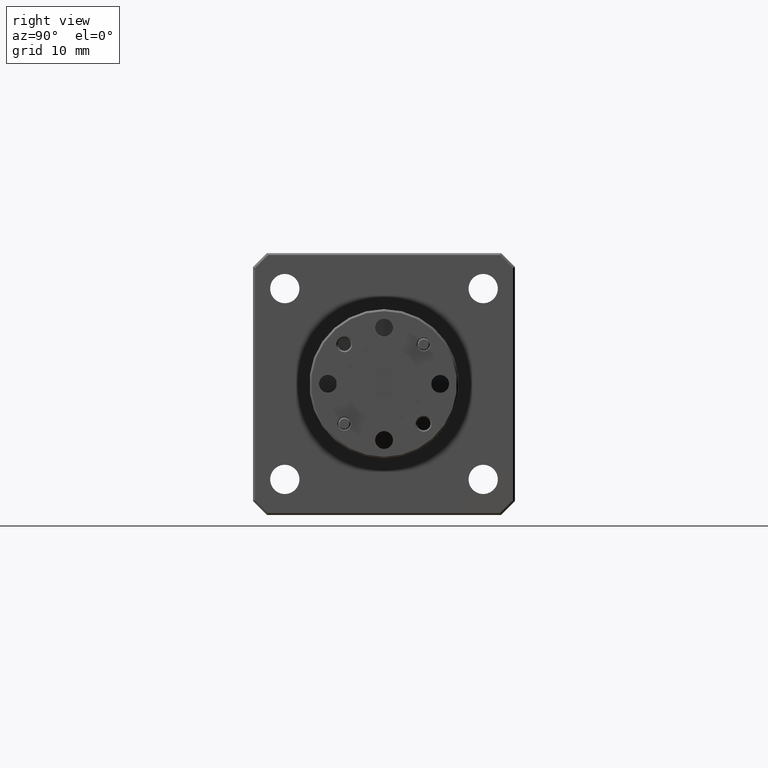
[diagram: clean part render]
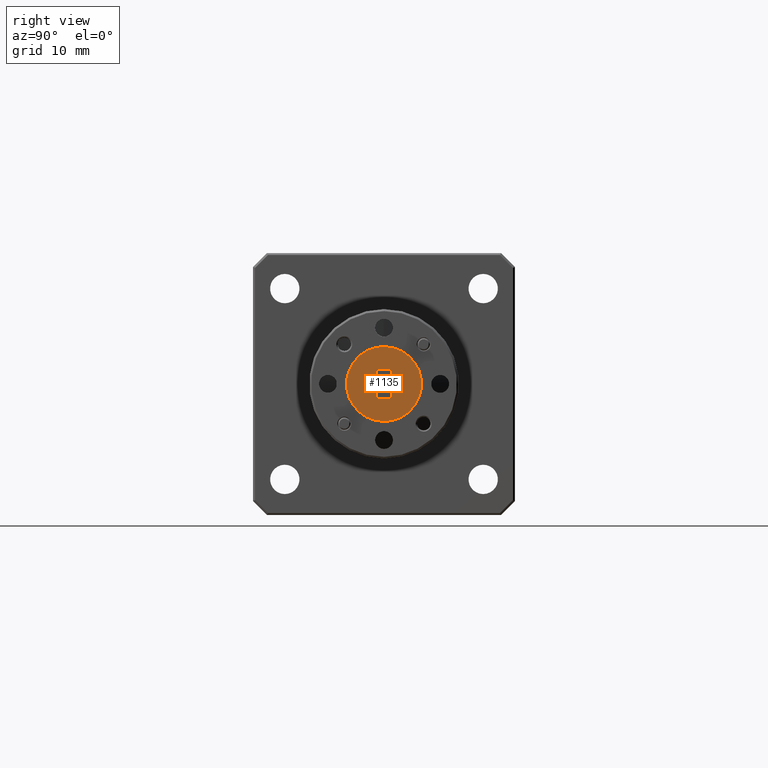
[diagram: same view with one face highlighted and labeled with its STEP entity id]
A machine part, right view. The second image highlights one B-rep face of the part: STEP entity #1135.
In plain terms, the highlighted planar face has unit normal (-1, 0, -0).
Its self-contained STEP definition (entity closure, byte-faithful):
#114 = DIRECTION ( 'NONE',  ( 0.0000000000000000000, -1.730478036527193700E-016, 1.000000000000000000 ) ) ;
#186 = VECTOR ( 'NONE', #880, 39.37007874015748100 ) ;
#239 = ORIENTED_EDGE ( 'NONE', *, *, #2838, .F. ) ;
#249 = FACE_BOUND ( 'NONE', #312, .T. ) ;
#295 = EDGE_CURVE ( 'NONE', #2774, #1028, #2462, .T. ) ;
#312 = EDGE_LOOP ( 'NONE', ( #815, #730, #705, #239 ) ) ;
#405 = CIRCLE ( 'NONE', #1616, 0.1875000000000003900 ) ;
#542 = DIRECTION ( 'NONE',  ( -1.000000000000000000, -0.0000000000000000000, -0.0000000000000000000 ) ) ;
#604 = CARTESIAN_POINT ( 'NONE',  ( 3.000000000000000400, 0.03699999999999999800, -0.07400000000000003800 ) ) ;
#691 = CARTESIAN_POINT ( 'NONE',  ( 3.000000000000000400, 0.0000000000000000000, 0.1875000000000003900 ) ) ;
#705 = ORIENTED_EDGE ( 'NONE', *, *, #1759, .F. ) ;
#730 = ORIENTED_EDGE ( 'NONE', *, *, #2949, .F. ) ;
#731 = AXIS2_PLACEMENT_3D ( 'NONE', #2712, #542, #1402 ) ;
#732 = CIRCLE ( 'NONE', #731, 0.1875000000000003900 ) ;
#815 = ORIENTED_EDGE ( 'NONE', *, *, #295, .F. ) ;
#880 = DIRECTION ( 'NONE',  ( 0.0000000000000000000, 1.000000000000000000, 0.0000000000000000000 ) ) ;
#939 = CARTESIAN_POINT ( 'NONE',  ( 3.000000000000000400, -0.03700000000000002600, 0.07399999999999995500 ) ) ;
#974 = DIRECTION ( 'NONE',  ( -0.0000000000000000000, 0.0000000000000000000, 1.000000000000000000 ) ) ;
#1028 = VERTEX_POINT ( 'NONE', #3131 ) ;
#1118 = CARTESIAN_POINT ( 'NONE',  ( 3.000000000000000400, -0.03700000000000000500, -0.07400000000000003800 ) ) ;
#1135 = ADVANCED_FACE ( 'NONE', ( #2901, #249 ), #1743, .F. ) ;
#1176 = CARTESIAN_POINT ( 'NONE',  ( 3.000000000000000400, 0.0000000000000000000, 0.0000000000000000000 ) ) ;
#1204 = CARTESIAN_POINT ( 'NONE',  ( 3.000000000000000400, 2.296212748401292000E-017, -0.1875000000000003900 ) ) ;
#1249 = LINE ( 'NONE', #939, #1366 ) ;
#1366 = VECTOR ( 'NONE', #1429, 39.37007874015748100 ) ;
#1402 = DIRECTION ( 'NONE',  ( 0.0000000000000000000, 0.0000000000000000000, 1.000000000000000000 ) ) ;
#1429 = DIRECTION ( 'NONE',  ( -0.0000000000000000000, -1.000000000000000000, -0.0000000000000000000 ) ) ;
#1560 = ORIENTED_EDGE ( 'NONE', *, *, #1966, .F. ) ;
#1616 = AXIS2_PLACEMENT_3D ( 'NONE', #1176, #3136, #2915 ) ;
#1700 = DIRECTION ( 'NONE',  ( -1.000000000000000000, 0.0000000000000000000, -0.0000000000000000000 ) ) ;
#1706 = VERTEX_POINT ( 'NONE', #3068 ) ;
#1743 = PLANE ( 'NONE',  #2351 ) ;
#1759 = EDGE_CURVE ( 'NONE', #2233, #1706, #3195, .T. ) ;
#1915 = DIRECTION ( 'NONE',  ( -0.0000000000000000000, 1.153652024351462600E-016, -1.000000000000000000 ) ) ;
#1966 = EDGE_CURVE ( 'NONE', #2025, #2277, #405, .T. ) ;
#2025 = VERTEX_POINT ( 'NONE', #691 ) ;
#2074 = LINE ( 'NONE', #2402, #186 ) ;
#2233 = VERTEX_POINT ( 'NONE', #2926 ) ;
#2277 = VERTEX_POINT ( 'NONE', #1204 ) ;
#2351 = AXIS2_PLACEMENT_3D ( 'NONE', #2691, #1700, #974 ) ;
#2386 = VECTOR ( 'NONE', #114, 39.37007874015748100 ) ;
#2402 = CARTESIAN_POINT ( 'NONE',  ( 3.000000000000000400, -0.03700000000000000500, -0.07400000000000003800 ) ) ;
#2462 = LINE ( 'NONE', #604, #2386 ) ;
#2515 = VECTOR ( 'NONE', #1915, 39.37007874015748100 ) ;
#2691 = CARTESIAN_POINT ( 'NONE',  ( 3.000000000000000400, 0.1875000000000003900, 0.0000000000000000000 ) ) ;
#2712 = CARTESIAN_POINT ( 'NONE',  ( 3.000000000000000400, 0.0000000000000000000, 0.0000000000000000000 ) ) ;
#2747 = EDGE_LOOP ( 'NONE', ( #1560, #2776 ) ) ;
#2774 = VERTEX_POINT ( 'NONE', #3090 ) ;
#2776 = ORIENTED_EDGE ( 'NONE', *, *, #3012, .F. ) ;
#2838 = EDGE_CURVE ( 'NONE', #1028, #2233, #1249, .T. ) ;
#2901 = FACE_OUTER_BOUND ( 'NONE', #2747, .T. ) ;
#2915 = DIRECTION ( 'NONE',  ( 0.0000000000000000000, 0.0000000000000000000, 1.000000000000000000 ) ) ;
#2926 = CARTESIAN_POINT ( 'NONE',  ( 3.000000000000000400, -0.03699999999999999100, 0.07399999999999995500 ) ) ;
#2949 = EDGE_CURVE ( 'NONE', #1706, #2774, #2074, .T. ) ;
#3012 = EDGE_CURVE ( 'NONE', #2277, #2025, #732, .T. ) ;
#3068 = CARTESIAN_POINT ( 'NONE',  ( 3.000000000000000400, -0.03700000000000000500, -0.07400000000000003800 ) ) ;
#3090 = CARTESIAN_POINT ( 'NONE',  ( 3.000000000000000400, 0.03699999999999999800, -0.07400000000000003800 ) ) ;
#3131 = CARTESIAN_POINT ( 'NONE',  ( 3.000000000000000400, 0.03699999999999997700, 0.07399999999999995500 ) ) ;
#3136 = DIRECTION ( 'NONE',  ( -1.000000000000000000, -0.0000000000000000000, -0.0000000000000000000 ) ) ;
#3195 = LINE ( 'NONE', #1118, #2515 ) ;